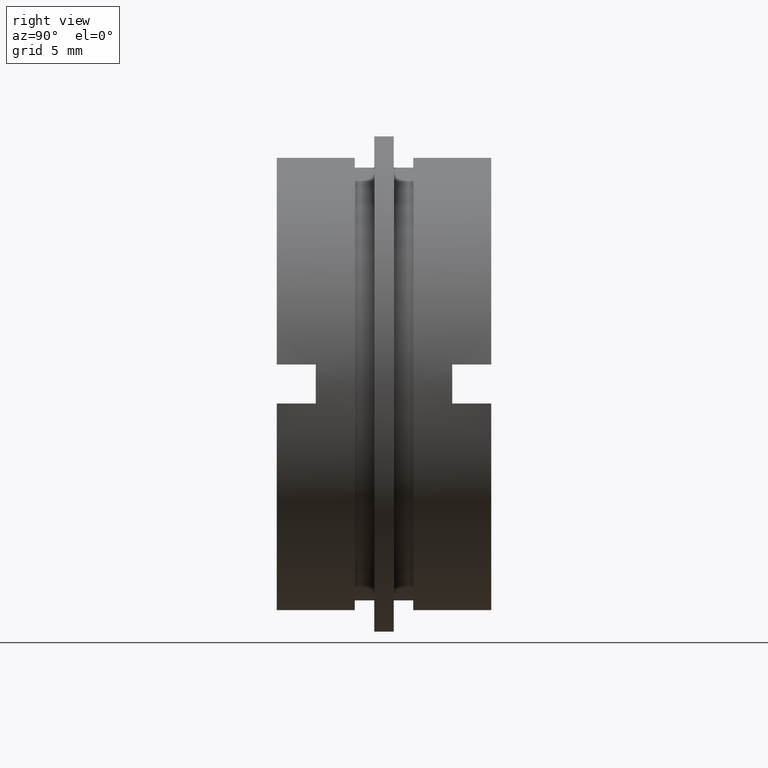
[diagram: clean part render]
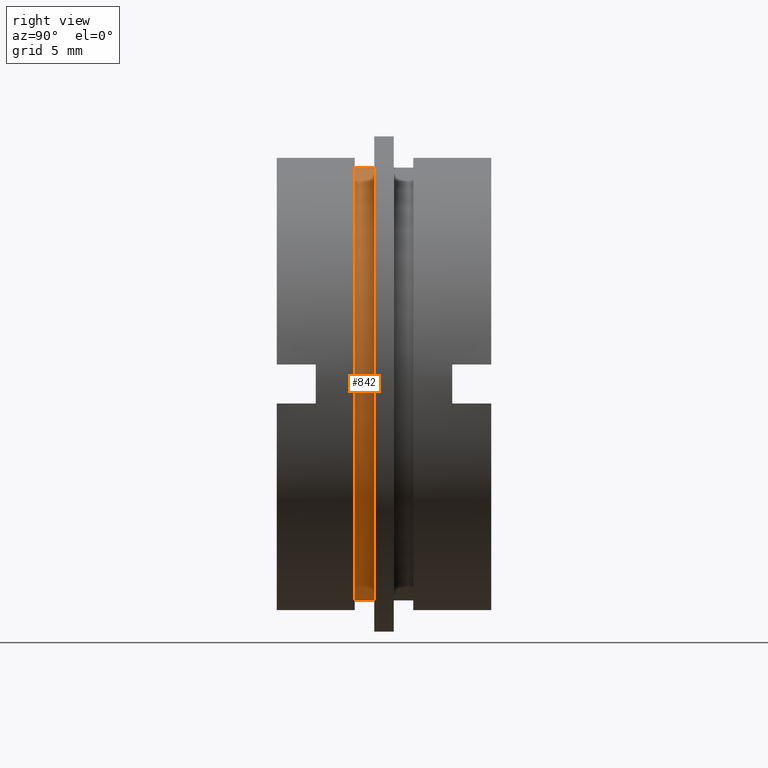
[diagram: same view with one face highlighted and labeled with its STEP entity id]
A machine part, right view. The second image highlights one B-rep face of the part: STEP entity #842.
In plain terms, the highlighted cylindrical surface (partial cylindrical patch) has radius 11.1 mm, axis along (-0, 1, -0).
Its self-contained STEP definition (entity closure, byte-faithful):
#74 = EDGE_CURVE ( 'NONE', #806, #981, #578, .T. ) ;
#147 = EDGE_CURVE ( 'NONE', #567, #981, #762, .T. ) ;
#161 = CARTESIAN_POINT ( 'NONE',  ( 1.359357947053562000E-015, 22.67749945107591400, -11.09999999999999800 ) ) ;
#181 = CYLINDRICAL_SURFACE ( 'NONE', #561, 11.09999999999999800 ) ;
#244 = ORIENTED_EDGE ( 'NONE', *, *, #74, .T. ) ;
#279 = AXIS2_PLACEMENT_3D ( 'NONE', #1132, #523, #1047 ) ;
#285 = CARTESIAN_POINT ( 'NONE',  ( 0.0000000000000000000, 5.000000000000000900, 11.09999999999999800 ) ) ;
#308 = EDGE_CURVE ( 'NONE', #854, #567, #1142, .T. ) ;
#333 = CARTESIAN_POINT ( 'NONE',  ( 0.0000000000000000000, 4.000000000000000000, 11.09999999999999800 ) ) ;
#337 = VECTOR ( 'NONE', #346, 1000.000000000000000 ) ;
#346 = DIRECTION ( 'NONE',  ( -0.0000000000000000000, 1.000000000000000000, -0.0000000000000000000 ) ) ;
#373 = CIRCLE ( 'NONE', #279, 11.09999999999999800 ) ;
#412 = DIRECTION ( 'NONE',  ( 0.0000000000000000000, 0.0000000000000000000, 1.000000000000000000 ) ) ;
#416 = FACE_OUTER_BOUND ( 'NONE', #1081, .T. ) ;
#484 = CARTESIAN_POINT ( 'NONE',  ( 0.0000000000000000000, 22.67749945107591400, 11.09999999999999800 ) ) ;
#500 = CARTESIAN_POINT ( 'NONE',  ( 1.359357947053562000E-015, 4.000000000000000000, -11.09999999999999800 ) ) ;
#507 = ORIENTED_EDGE ( 'NONE', *, *, #652, .T. ) ;
#523 = DIRECTION ( 'NONE',  ( -0.0000000000000000000, 1.000000000000000000, -0.0000000000000000000 ) ) ;
#532 = DIRECTION ( 'NONE',  ( 0.0000000000000000000, 0.0000000000000000000, 1.000000000000000000 ) ) ;
#561 = AXIS2_PLACEMENT_3D ( 'NONE', #807, #886, #532 ) ;
#567 = VERTEX_POINT ( 'NONE', #285 ) ;
#578 = LINE ( 'NONE', #161, #337 ) ;
#606 = AXIS2_PLACEMENT_3D ( 'NONE', #885, #714, #412 ) ;
#652 = EDGE_CURVE ( 'NONE', #854, #806, #373, .T. ) ;
#714 = DIRECTION ( 'NONE',  ( -0.0000000000000000000, 1.000000000000000000, -0.0000000000000000000 ) ) ;
#732 = ORIENTED_EDGE ( 'NONE', *, *, #147, .F. ) ;
#733 = VECTOR ( 'NONE', #1017, 1000.000000000000000 ) ;
#762 = CIRCLE ( 'NONE', #606, 11.09999999999999800 ) ;
#806 = VERTEX_POINT ( 'NONE', #500 ) ;
#807 = CARTESIAN_POINT ( 'NONE',  ( 0.0000000000000000000, 22.67749945107591400, 0.0000000000000000000 ) ) ;
#842 = ADVANCED_FACE ( 'NONE', ( #416 ), #181, .T. ) ;
#854 = VERTEX_POINT ( 'NONE', #333 ) ;
#885 = CARTESIAN_POINT ( 'NONE',  ( 0.0000000000000000000, 5.000000000000000900, 0.0000000000000000000 ) ) ;
#886 = DIRECTION ( 'NONE',  ( -0.0000000000000000000, 1.000000000000000000, -0.0000000000000000000 ) ) ;
#959 = CARTESIAN_POINT ( 'NONE',  ( 1.359357947053562000E-015, 5.000000000000000900, -11.09999999999999800 ) ) ;
#976 = ORIENTED_EDGE ( 'NONE', *, *, #308, .F. ) ;
#981 = VERTEX_POINT ( 'NONE', #959 ) ;
#1017 = DIRECTION ( 'NONE',  ( -0.0000000000000000000, 1.000000000000000000, -0.0000000000000000000 ) ) ;
#1047 = DIRECTION ( 'NONE',  ( 0.0000000000000000000, 0.0000000000000000000, 1.000000000000000000 ) ) ;
#1081 = EDGE_LOOP ( 'NONE', ( #507, #244, #732, #976 ) ) ;
#1132 = CARTESIAN_POINT ( 'NONE',  ( 0.0000000000000000000, 4.000000000000000000, 0.0000000000000000000 ) ) ;
#1142 = LINE ( 'NONE', #484, #733 ) ;